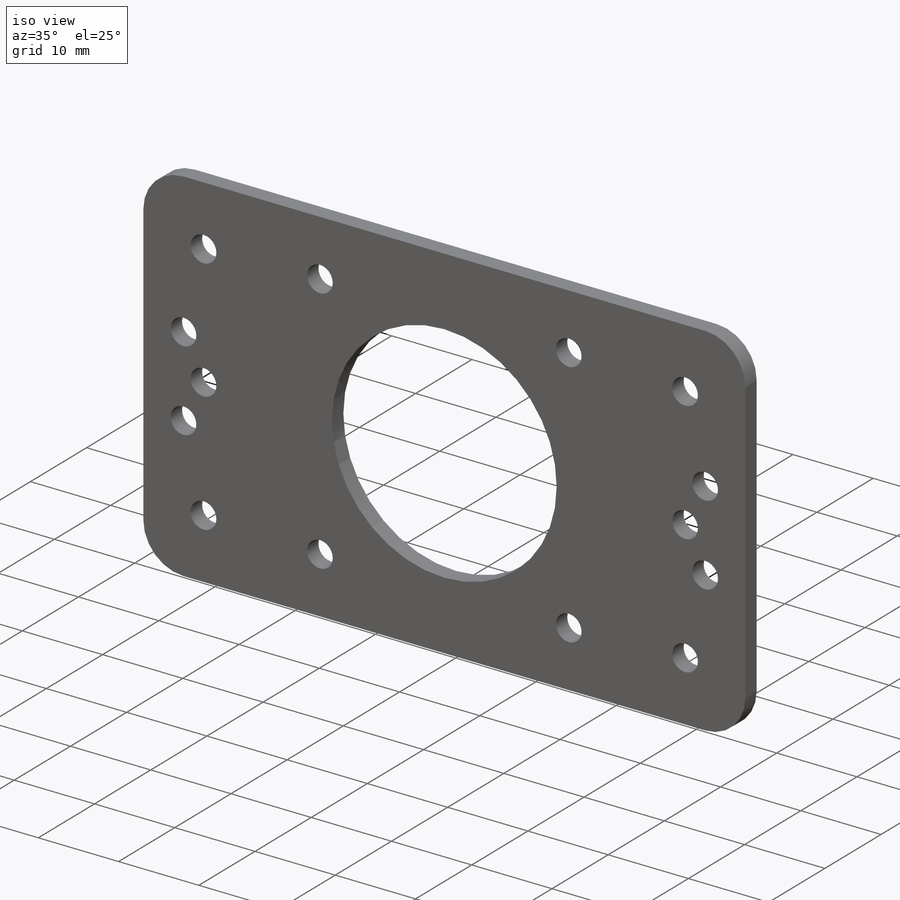
[diagram: iso view]
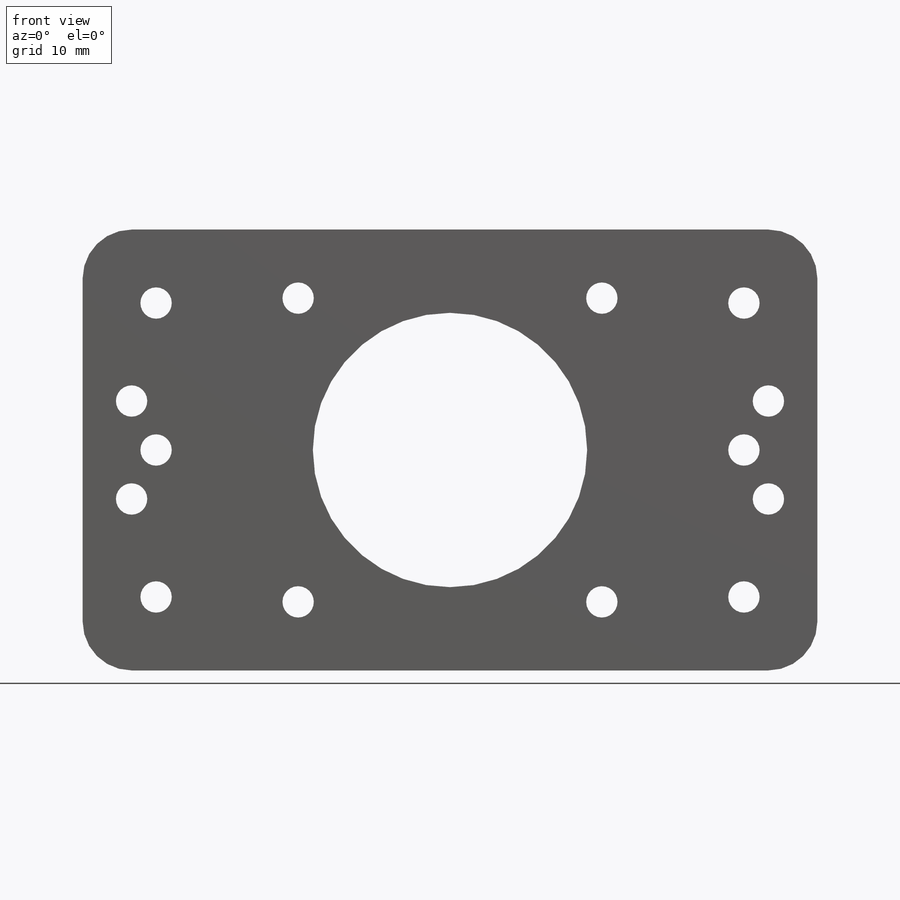
[diagram: front view]
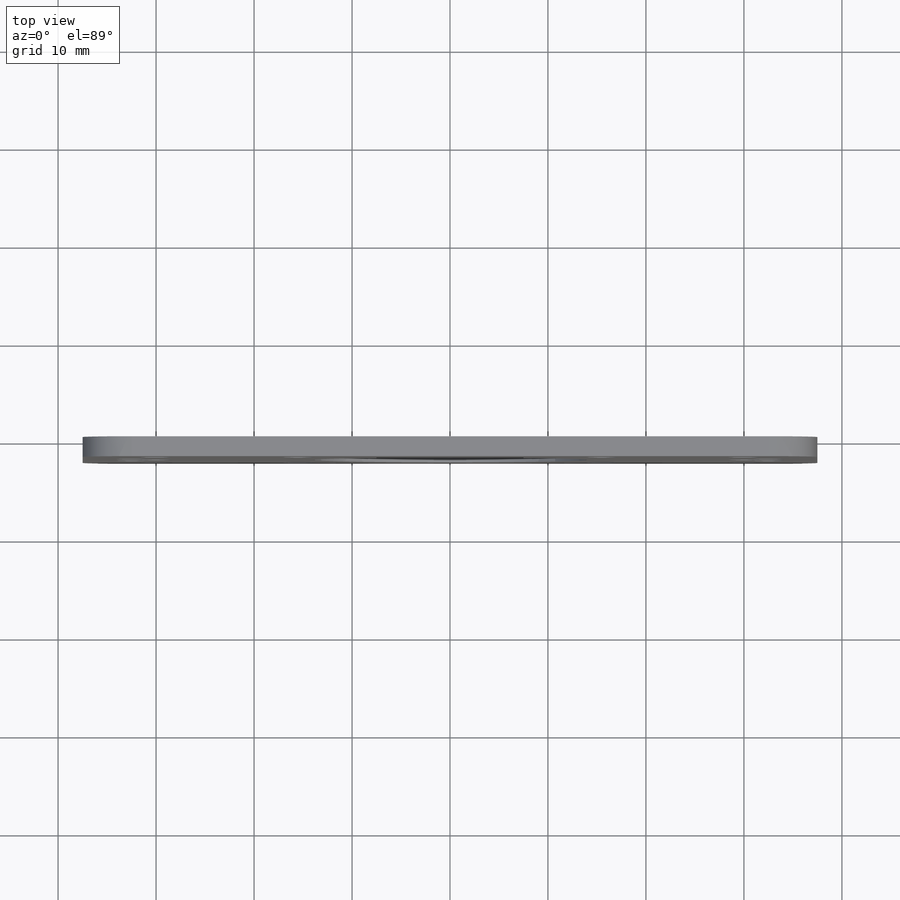
[diagram: top view]
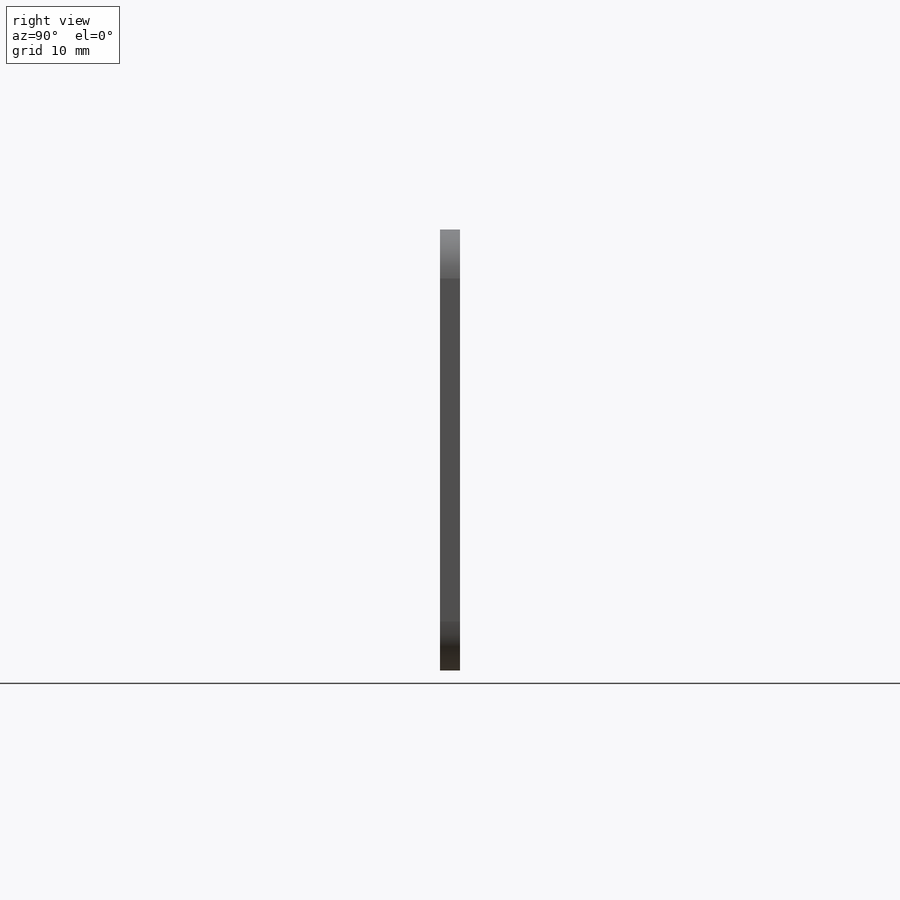
[diagram: right view]
SOLIDWORKS PART (.sldprt)
format: sldprt  version: not decoded by parser v0  size: 257,536 bytes
history: native  units: mm
features: sketch x4, cut_extrude x2, material x1, extrude x1, fillet x1 (+11 scaffold rows collapsed)
feature tree (20):
  scaffold x11  (default folders/planes/origin — collapsed)
  material  "Material <not specified>"
  sketch  "Sketch1"  dims[D2=28.0mm D3=3.2mm D1=31.0mm D4=45.0mm D5=75.0mm D6=15.0mm D7=15.0mm]
  extrude  "Boss-Extrude1"  Depth=2.032mm
  fillet  "Fillet2"  Radius=5mm
  sketch  "Sketch2"  dims[D1=3.2mm D2=7.5mm D3=15.0mm]
  cut_extrude  "Cut-Extrude1"  [1 undecoded]
  sketch  "Sketch3"  dims[c1.D1=3.2mm c1.D2=5.0mm c1.D3=20.0mm c1.D4=10.0mm c2.D3=10.0mm]
  cut_extrude  "Cut-Extrude2"  [1 undecoded]
  sketch  "Alignment Sketch 1"
decode coverage: 5 of 8 modeling features carry decoded parameters
note: 2 parameter values undecoded
note: suppression state not decoded; provenance and decode notes live in map.json
